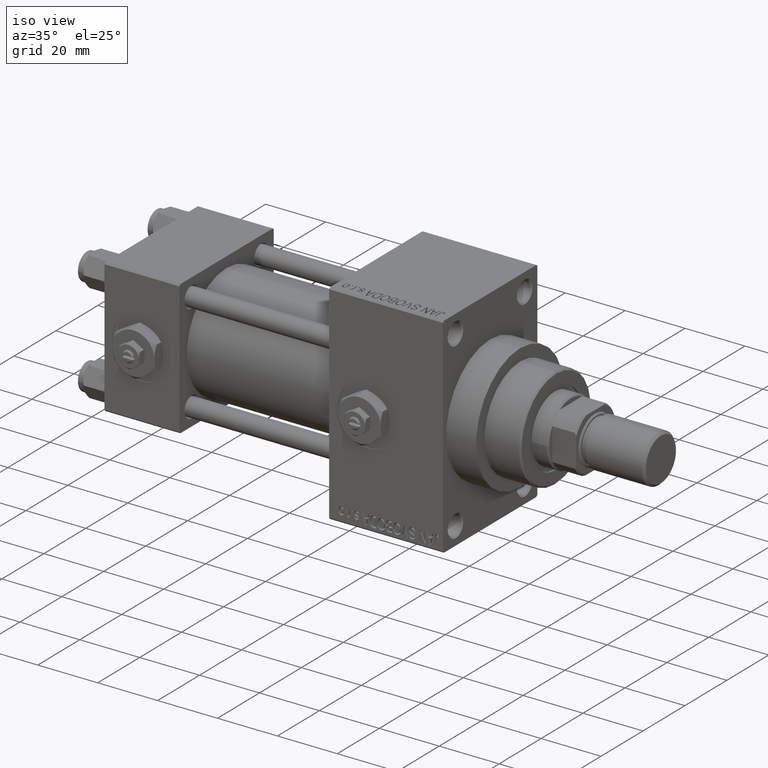
[diagram: clean part render]
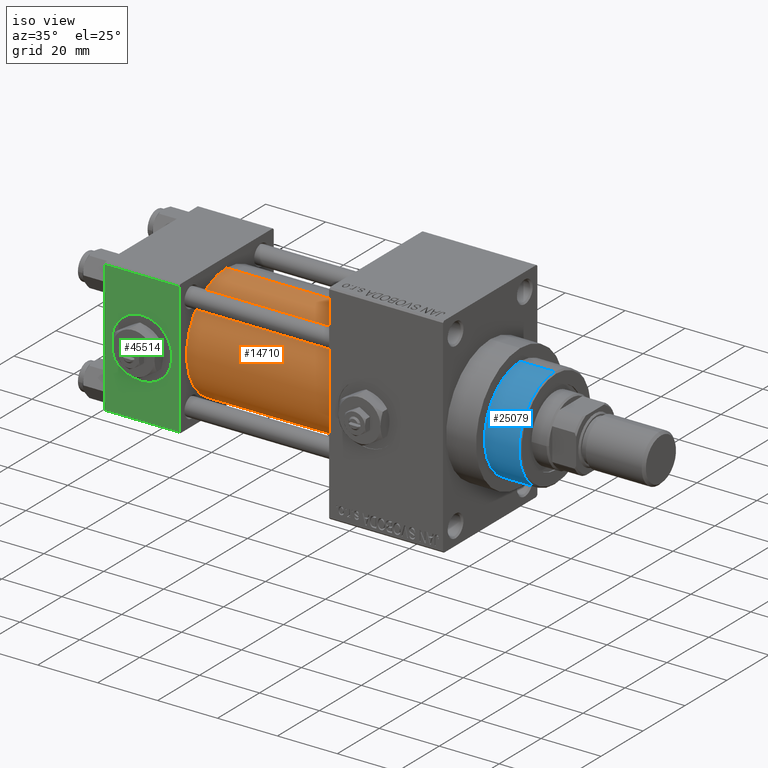
[diagram: same view with three faces highlighted in distinct colors, each labeled with its STEP entity id]
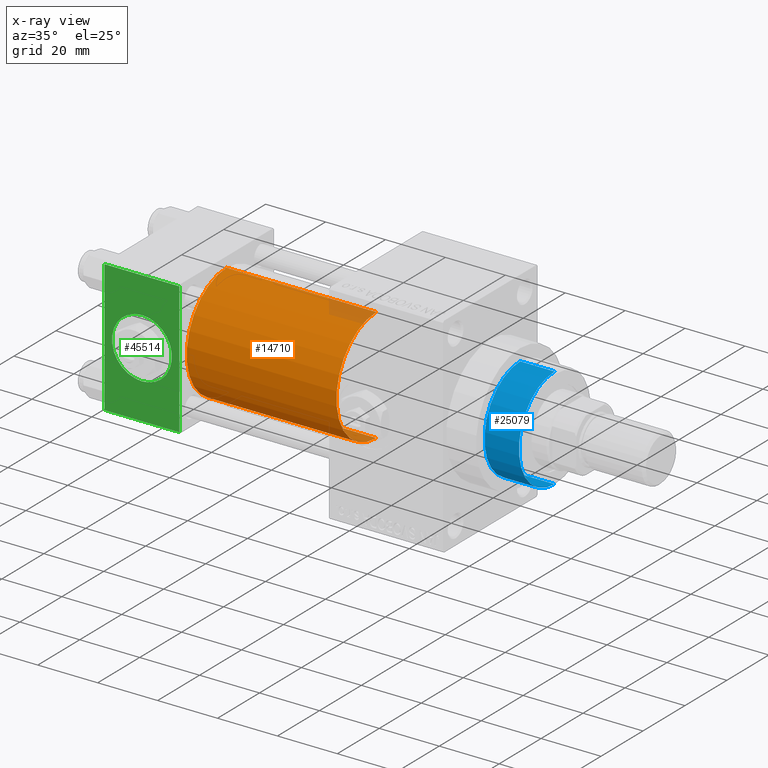
[diagram: x-ray of the same camera — body ghosted, the three highlighted faces saturated]
A machine part, iso view with three faces highlighted in distinct colors.
The next image is the same camera in x-ray (body ghosted, the three faces saturated) — at least one of them is partly hidden behind the body in this view.
Their STEP definitions:

[orange] entity #14710 — the highlighted cylindrical surface (partial cylindrical patch) has radius 19 mm, axis along (-1, -0, -0).
#622 = EDGE_CURVE ( 'NONE', #24658, #45733, #41432, .T. ) ;
#4226 = CARTESIAN_POINT ( 'NONE',  ( 25.00000000000000000, -2.602085213965210642E-15, 0.000000000000000000 ) ) ;
#5713 = CARTESIAN_POINT ( 'NONE',  ( 25.00000000000000000, -2.602085213965210642E-15, 19.00000000000000000 ) ) ;
#7601 = DIRECTION ( 'NONE',  ( -1.000000000000000000, -0.000000000000000000, -0.000000000000000000 ) ) ;
#7780 = DIRECTION ( 'NONE',  ( -1.000000000000000000, -0.000000000000000000, -0.000000000000000000 ) ) ;
#11353 = AXIS2_PLACEMENT_3D ( 'NONE', #12052, #7780, #38133 ) ;
#12052 = CARTESIAN_POINT ( 'NONE',  ( 75.00000000000001421, -2.602085213965210642E-15, 0.000000000000000000 ) ) ;
#12870 = CARTESIAN_POINT ( 'NONE',  ( 75.00000000000001421, -2.602085213965210642E-15, 19.00000000000000000 ) ) ;
#13593 = CARTESIAN_POINT ( 'NONE',  ( 75.00000000000001421, -2.602085213965210642E-15, 0.000000000000000000 ) ) ;
#14710 = ADVANCED_FACE ( 'NONE', ( #42628 ), #16051, .T. ) ;
#16051 = CYLINDRICAL_SURFACE ( 'NONE', #11353, 19.00000000000000000 ) ;
#16865 = DIRECTION ( 'NONE',  ( 1.000000000000000000, 0.000000000000000000, 0.000000000000000000 ) ) ;
#17965 = EDGE_LOOP ( 'NONE', ( #23892, #30264, #33400, #32933 ) ) ;
#18265 = CIRCLE ( 'NONE', #24680, 19.00000000000000000 ) ;
#19517 = DIRECTION ( 'NONE',  ( 0.000000000000000000, 0.000000000000000000, 1.000000000000000000 ) ) ;
#19760 = DIRECTION ( 'NONE',  ( 1.000000000000000000, -0.000000000000000000, 0.000000000000000000 ) ) ;
#22359 = VERTEX_POINT ( 'NONE', #12870 ) ;
#22594 = CARTESIAN_POINT ( 'NONE',  ( 75.00000000000001421, -2.752562955852396712E-16, -19.00000000000000000 ) ) ;
#23714 = CARTESIAN_POINT ( 'NONE',  ( 25.00000000000000000, -2.752562955852396712E-16, -19.00000000000000000 ) ) ;
#23892 = ORIENTED_EDGE ( 'NONE', *, *, #622, .F. ) ;
#24658 = VERTEX_POINT ( 'NONE', #22594 ) ;
#24680 = AXIS2_PLACEMENT_3D ( 'NONE', #4226, #19760, #19517 ) ;
#28096 = VECTOR ( 'NONE', #7601, 1000.000000000000000 ) ;
#30264 = ORIENTED_EDGE ( 'NONE', *, *, #48972, .F. ) ;
#30672 = LINE ( 'NONE', #45954, #28096 ) ;
#31781 = VECTOR ( 'NONE', #48429, 1000.000000000000000 ) ;
#32933 = ORIENTED_EDGE ( 'NONE', *, *, #34431, .T. ) ;
#33400 = ORIENTED_EDGE ( 'NONE', *, *, #44423, .T. ) ;
#34431 = EDGE_CURVE ( 'NONE', #39172, #45733, #18265, .T. ) ;
#36234 = CIRCLE ( 'NONE', #37852, 19.00000000000000000 ) ;
#37852 = AXIS2_PLACEMENT_3D ( 'NONE', #13593, #16865, #47426 ) ;
#38133 = DIRECTION ( 'NONE',  ( 0.000000000000000000, 0.000000000000000000, 1.000000000000000000 ) ) ;
#39172 = VERTEX_POINT ( 'NONE', #5713 ) ;
#41432 = LINE ( 'NONE', #48186, #31781 ) ;
#42628 = FACE_OUTER_BOUND ( 'NONE', #17965, .T. ) ;
#44423 = EDGE_CURVE ( 'NONE', #22359, #39172, #30672, .T. ) ;
#45733 = VERTEX_POINT ( 'NONE', #23714 ) ;
#45954 = CARTESIAN_POINT ( 'NONE',  ( 75.00000000000001421, -2.602085213965210642E-15, 19.00000000000000000 ) ) ;
#47426 = DIRECTION ( 'NONE',  ( 0.000000000000000000, 0.000000000000000000, -1.000000000000000000 ) ) ;
#48186 = CARTESIAN_POINT ( 'NONE',  ( 75.00000000000001421, -2.752562955852396712E-16, -19.00000000000000000 ) ) ;
#48429 = DIRECTION ( 'NONE',  ( -1.000000000000000000, -0.000000000000000000, -0.000000000000000000 ) ) ;
#48972 = EDGE_CURVE ( 'NONE', #22359, #24658, #36234, .T. ) ;

[blue] entity #25079 — the highlighted cylindrical surface (partial cylindrical patch) has radius 17 mm, axis along (-1, 0, 0).
#226 = AXIS2_PLACEMENT_3D ( 'NONE', #41869, #3997, #22810 ) ;
#2484 = VECTOR ( 'NONE', #46883, 1000.000000000000000 ) ;
#2595 = CIRCLE ( 'NONE', #226, 17.00000000000000000 ) ;
#3997 = DIRECTION ( 'NONE',  ( 0.000000000000000000, 0.000000000000000000, -1.000000000000000000 ) ) ;
#5459 = DIRECTION ( 'NONE',  ( -0.000000000000000000, -0.000000000000000000, -1.000000000000000000 ) ) ;
#10374 = DIRECTION ( 'NONE',  ( 0.000000000000000000, 0.000000000000000000, 1.000000000000000000 ) ) ;
#11012 = VECTOR ( 'NONE', #20782, 1000.000000000000000 ) ;
#16033 = LINE ( 'NONE', #46840, #11012 ) ;
#17232 = CARTESIAN_POINT ( 'NONE',  ( -17.00000000000000000, 0.000000000000000000, 43.25999999999999801 ) ) ;
#19655 = EDGE_CURVE ( 'NONE', #48533, #47139, #2595, .T. ) ;
#20337 = CARTESIAN_POINT ( 'NONE',  ( 17.00000000000000000, 2.081899558550500280E-15, 55.26000000000000512 ) ) ;
#20782 = DIRECTION ( 'NONE',  ( -0.000000000000000000, -0.000000000000000000, -1.000000000000000000 ) ) ;
#20902 = ORIENTED_EDGE ( 'NONE', *, *, #40363, .T. ) ;
#22810 = DIRECTION ( 'NONE',  ( 1.000000000000000000, 0.000000000000000000, 0.000000000000000000 ) ) ;
#23721 = AXIS2_PLACEMENT_3D ( 'NONE', #40058, #5459, #48040 ) ;
#24754 = VERTEX_POINT ( 'NONE', #45900 ) ;
#25079 = ADVANCED_FACE ( 'NONE', ( #40795 ), #32526, .T. ) ;
#31916 = EDGE_CURVE ( 'NONE', #48533, #37103, #16033, .T. ) ;
#31937 = CIRCLE ( 'NONE', #37563, 17.00000000000000000 ) ;
#32526 = CYLINDRICAL_SURFACE ( 'NONE', #23721, 17.00000000000000000 ) ;
#33373 = ORIENTED_EDGE ( 'NONE', *, *, #31916, .F. ) ;
#34408 = CARTESIAN_POINT ( 'NONE',  ( -17.00000000000000000, 0.000000000000000000, 54.76000000000001222 ) ) ;
#35378 = LINE ( 'NONE', #20337, #2484 ) ;
#36484 = EDGE_CURVE ( 'NONE', #24754, #37103, #31937, .T. ) ;
#37103 = VERTEX_POINT ( 'NONE', #17232 ) ;
#37450 = CARTESIAN_POINT ( 'NONE',  ( 0.000000000000000000, 0.000000000000000000, 43.25999999999999801 ) ) ;
#37563 = AXIS2_PLACEMENT_3D ( 'NONE', #37450, #10374, #44706 ) ;
#40058 = CARTESIAN_POINT ( 'NONE',  ( 0.000000000000000000, 0.000000000000000000, 55.26000000000000512 ) ) ;
#40363 = EDGE_CURVE ( 'NONE', #47139, #24754, #35378, .T. ) ;
#40795 = FACE_OUTER_BOUND ( 'NONE', #41525, .T. ) ;
#41525 = EDGE_LOOP ( 'NONE', ( #45371, #20902, #44996, #33373 ) ) ;
#41869 = CARTESIAN_POINT ( 'NONE',  ( 0.000000000000000000, 0.000000000000000000, 54.76000000000001222 ) ) ;
#44706 = DIRECTION ( 'NONE',  ( 1.000000000000000000, 0.000000000000000000, 0.000000000000000000 ) ) ;
#44996 = ORIENTED_EDGE ( 'NONE', *, *, #36484, .T. ) ;
#45371 = ORIENTED_EDGE ( 'NONE', *, *, #19655, .T. ) ;
#45793 = CARTESIAN_POINT ( 'NONE',  ( 17.00000000000000000, 2.081899558550500280E-15, 54.76000000000001222 ) ) ;
#45900 = CARTESIAN_POINT ( 'NONE',  ( 17.00000000000000000, 2.081899558550500280E-15, 43.25999999999999801 ) ) ;
#46840 = CARTESIAN_POINT ( 'NONE',  ( -17.00000000000000000, 0.000000000000000000, 55.26000000000000512 ) ) ;
#46883 = DIRECTION ( 'NONE',  ( -0.000000000000000000, -0.000000000000000000, -1.000000000000000000 ) ) ;
#47139 = VERTEX_POINT ( 'NONE', #45793 ) ;
#48040 = DIRECTION ( 'NONE',  ( -1.000000000000000000, 0.000000000000000000, 0.000000000000000000 ) ) ;
#48533 = VERTEX_POINT ( 'NONE', #34408 ) ;

[green] entity #45514 — the highlighted planar face has unit normal (0, 1, 0).
#712 = VERTEX_POINT ( 'NONE', #41939 ) ;
#2308 = EDGE_CURVE ( 'NONE', #42207, #42312, #36939, .T. ) ;
#2648 = VERTEX_POINT ( 'NONE', #39854 ) ;
#3635 = VECTOR ( 'NONE', #48877, 1000.000000000000000 ) ;
#5276 = FACE_BOUND ( 'NONE', #41565, .T. ) ;
#7946 = CIRCLE ( 'NONE', #27120, 9.999999999999996447 ) ;
#8196 = EDGE_CURVE ( 'NONE', #10295, #712, #7946, .T. ) ;
#9781 = CARTESIAN_POINT ( 'NONE',  ( 12.50000000000000000, -22.50000000000000000, 0.000000000000000000 ) ) ;
#10295 = VERTEX_POINT ( 'NONE', #14575 ) ;
#10659 = LINE ( 'NONE', #48480, #49238 ) ;
#12551 = PLANE ( 'NONE',  #23357 ) ;
#12645 = DIRECTION ( 'NONE',  ( 0.000000000000000000, 0.000000000000000000, -1.000000000000000000 ) ) ;
#13000 = ORIENTED_EDGE ( 'NONE', *, *, #42714, .F. ) ;
#14072 = DIRECTION ( 'NONE',  ( 1.000000000000000000, 0.000000000000000000, 0.000000000000000000 ) ) ;
#14575 = CARTESIAN_POINT ( 'NONE',  ( 12.50000000000000000, -22.50000000000000000, -9.999999999999996447 ) ) ;
#14583 = EDGE_CURVE ( 'NONE', #42312, #2648, #36646, .T. ) ;
#15262 = ORIENTED_EDGE ( 'NONE', *, *, #23929, .T. ) ;
#15350 = VECTOR ( 'NONE', #14072, 1000.000000000000000 ) ;
#17055 = DIRECTION ( 'NONE',  ( 0.000000000000000000, 0.000000000000000000, -1.000000000000000000 ) ) ;
#18020 = DIRECTION ( 'NONE',  ( 0.000000000000000000, -1.000000000000000000, -8.673617379884036705E-17 ) ) ;
#18316 = CARTESIAN_POINT ( 'NONE',  ( 25.00000000000000000, -22.50000000000000000, -21.99999999999998579 ) ) ;
#20121 = CARTESIAN_POINT ( 'NONE',  ( 0.000000000000000000, -22.50000000000000000, -21.99999999999997158 ) ) ;
#21074 = DIRECTION ( 'NONE',  ( 0.000000000000000000, -0.000000000000000000, 1.000000000000000000 ) ) ;
#21798 = CARTESIAN_POINT ( 'NONE',  ( 25.00000000000000000, -22.50000000000000000, 22.00000000000000000 ) ) ;
#22587 = LINE ( 'NONE', #33617, #3635 ) ;
#23357 = AXIS2_PLACEMENT_3D ( 'NONE', #47614, #28333, #21074 ) ;
#23361 = EDGE_CURVE ( 'NONE', #24890, #2648, #10659, .T. ) ;
#23929 = EDGE_CURVE ( 'NONE', #24890, #42207, #22587, .T. ) ;
#24890 = VERTEX_POINT ( 'NONE', #21798 ) ;
#26857 = ORIENTED_EDGE ( 'NONE', *, *, #14583, .T. ) ;
#27120 = AXIS2_PLACEMENT_3D ( 'NONE', #35463, #31693, #12645 ) ;
#27829 = FACE_OUTER_BOUND ( 'NONE', #35035, .T. ) ;
#28281 = ORIENTED_EDGE ( 'NONE', *, *, #2308, .T. ) ;
#28333 = DIRECTION ( 'NONE',  ( -0.000000000000000000, 1.000000000000000000, 0.000000000000000000 ) ) ;
#29204 = DIRECTION ( 'NONE',  ( 0.000000000000000000, 0.000000000000000000, -1.000000000000000000 ) ) ;
#31693 = DIRECTION ( 'NONE',  ( 0.000000000000000000, -1.000000000000000000, -8.673617379884036705E-17 ) ) ;
#33617 = CARTESIAN_POINT ( 'NONE',  ( 25.00000000000000000, -22.50000000000000000, 22.00000000000000000 ) ) ;
#35035 = EDGE_LOOP ( 'NONE', ( #28281, #26857, #42326, #15262 ) ) ;
#35042 = VECTOR ( 'NONE', #36695, 1000.000000000000000 ) ;
#35369 = ORIENTED_EDGE ( 'NONE', *, *, #8196, .F. ) ;
#35463 = CARTESIAN_POINT ( 'NONE',  ( 12.50000000000000000, -22.50000000000000000, 0.000000000000000000 ) ) ;
#36646 = LINE ( 'NONE', #18316, #15350 ) ;
#36695 = DIRECTION ( 'NONE',  ( 0.000000000000000000, 0.000000000000000000, -1.000000000000000000 ) ) ;
#36939 = LINE ( 'NONE', #37192, #35042 ) ;
#37192 = CARTESIAN_POINT ( 'NONE',  ( 0.000000000000000000, -22.50000000000000000, 22.50000000000000000 ) ) ;
#37955 = CARTESIAN_POINT ( 'NONE',  ( 0.000000000000000000, -22.50000000000000000, 22.00000000000000000 ) ) ;
#39854 = CARTESIAN_POINT ( 'NONE',  ( 25.00000000000000000, -22.50000000000000000, -21.99999999999997158 ) ) ;
#40106 = AXIS2_PLACEMENT_3D ( 'NONE', #9781, #18020, #17055 ) ;
#41565 = EDGE_LOOP ( 'NONE', ( #35369, #13000 ) ) ;
#41939 = CARTESIAN_POINT ( 'NONE',  ( 12.50000000000000178, -22.50000000000000000, 9.999999999999996447 ) ) ;
#42207 = VERTEX_POINT ( 'NONE', #37955 ) ;
#42312 = VERTEX_POINT ( 'NONE', #20121 ) ;
#42326 = ORIENTED_EDGE ( 'NONE', *, *, #23361, .F. ) ;
#42714 = EDGE_CURVE ( 'NONE', #712, #10295, #48089, .T. ) ;
#45514 = ADVANCED_FACE ( 'NONE', ( #5276, #27829 ), #12551, .F. ) ;
#47614 = CARTESIAN_POINT ( 'NONE',  ( 25.00000000000000000, -22.50000000000000000, 22.50000000000000000 ) ) ;
#48089 = CIRCLE ( 'NONE', #40106, 9.999999999999996447 ) ;
#48480 = CARTESIAN_POINT ( 'NONE',  ( 25.00000000000000000, -22.50000000000000000, 22.50000000000000000 ) ) ;
#48877 = DIRECTION ( 'NONE',  ( -1.000000000000000000, 0.000000000000000000, 0.000000000000000000 ) ) ;
#49238 = VECTOR ( 'NONE', #29204, 1000.000000000000000 ) ;